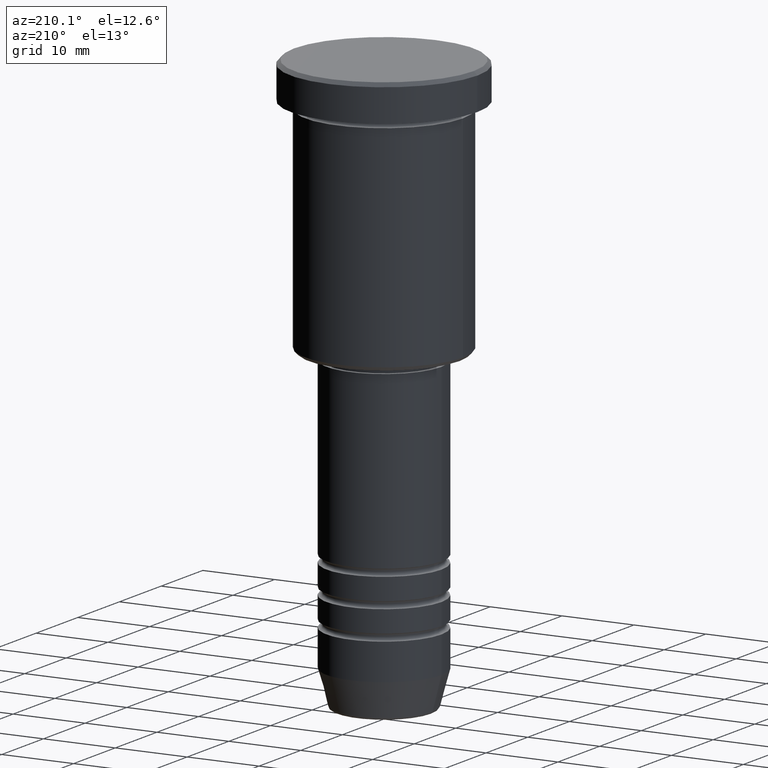
[diagram: clean part render]
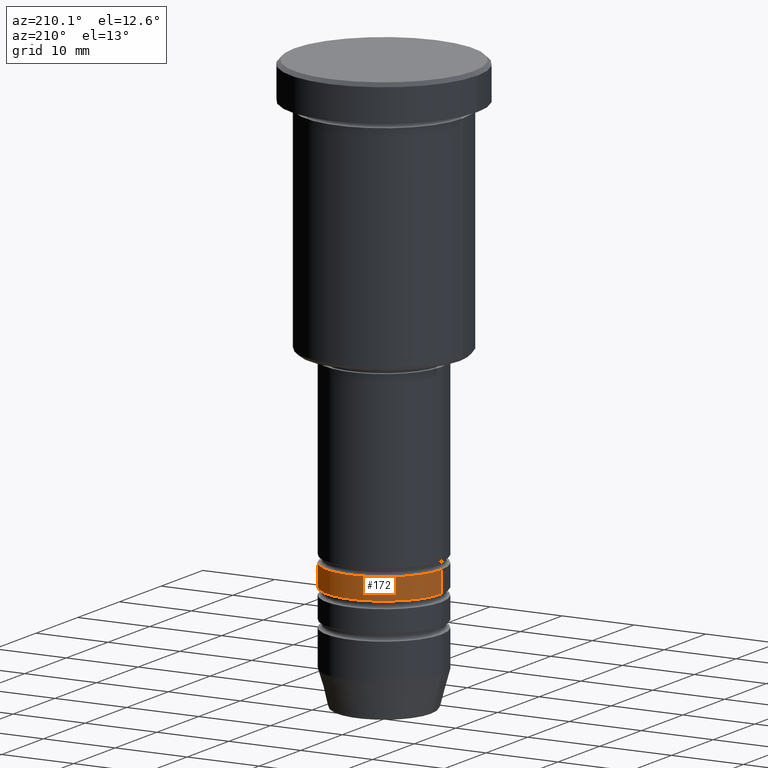
[diagram: same view with one face highlighted and labeled with its STEP entity id]
A machine part, auxiliary view. The second image highlights one B-rep face of the part: STEP entity #172.
In plain terms, the highlighted cylindrical surface (partial cylindrical patch) has radius 8 mm, axis along (-0, -0, 1).
Its self-contained STEP definition (entity closure, byte-faithful):
#57 = AXIS2_PLACEMENT_3D ( 'NONE', #1094, #931, #913 ) ;
#78 = CARTESIAN_POINT ( 'NONE',  ( -8.000000000000001776, 9.797174393178827630E-16, 0.000000000000000000 ) ) ;
#99 = EDGE_CURVE ( 'NONE', #212, #798, #878, .T. ) ;
#121 = EDGE_CURVE ( 'NONE', #212, #629, #502, .T. ) ;
#151 = VECTOR ( 'NONE', #436, 1000.000000000000000 ) ;
#153 = CARTESIAN_POINT ( 'NONE',  ( 0.000000000000000000, 0.000000000000000000, -65.00000000000000000 ) ) ;
#172 = ADVANCED_FACE ( 'NONE', ( #254 ), #1003, .T. ) ;
#191 = DIRECTION ( 'NONE',  ( 1.000000000000000000, 0.000000000000000000, 0.000000000000000000 ) ) ;
#197 = VECTOR ( 'NONE', #1059, 1000.000000000000000 ) ;
#212 = VERTEX_POINT ( 'NONE', #728 ) ;
#233 = CARTESIAN_POINT ( 'NONE',  ( 8.000000000000001776, 0.000000000000000000, 0.000000000000000000 ) ) ;
#254 = FACE_OUTER_BOUND ( 'NONE', #712, .T. ) ;
#436 = DIRECTION ( 'NONE',  ( -0.000000000000000000, -0.000000000000000000, 1.000000000000000000 ) ) ;
#456 = VERTEX_POINT ( 'NONE', #974 ) ;
#464 = CARTESIAN_POINT ( 'NONE',  ( 8.000000000000000000, 0.000000000000000000, -62.00000000000000711 ) ) ;
#502 = CIRCLE ( 'NONE', #1019, 8.000000000000003553 ) ;
#511 = DIRECTION ( 'NONE',  ( -0.000000000000000000, -0.000000000000000000, 1.000000000000000000 ) ) ;
#620 = CARTESIAN_POINT ( 'NONE',  ( -8.000000000000003553, 9.797174393178829602E-16, -65.00000000000000000 ) ) ;
#629 = VERTEX_POINT ( 'NONE', #620 ) ;
#635 = CARTESIAN_POINT ( 'NONE',  ( 0.000000000000000000, 0.000000000000000000, 0.000000000000000000 ) ) ;
#685 = LINE ( 'NONE', #78, #151 ) ;
#712 = EDGE_LOOP ( 'NONE', ( #1024, #1005, #860, #1069 ) ) ;
#728 = CARTESIAN_POINT ( 'NONE',  ( 8.000000000000003553, 0.000000000000000000, -65.00000000000000000 ) ) ;
#798 = VERTEX_POINT ( 'NONE', #464 ) ;
#800 = DIRECTION ( 'NONE',  ( -0.000000000000000000, -0.000000000000000000, 1.000000000000000000 ) ) ;
#860 = ORIENTED_EDGE ( 'NONE', *, *, #1121, .F. ) ;
#870 = AXIS2_PLACEMENT_3D ( 'NONE', #635, #800, #191 ) ;
#878 = LINE ( 'NONE', #233, #197 ) ;
#913 = DIRECTION ( 'NONE',  ( 1.000000000000000000, 0.000000000000000000, 0.000000000000000000 ) ) ;
#931 = DIRECTION ( 'NONE',  ( -0.000000000000000000, -0.000000000000000000, 1.000000000000000000 ) ) ;
#958 = EDGE_CURVE ( 'NONE', #629, #456, #685, .T. ) ;
#974 = CARTESIAN_POINT ( 'NONE',  ( -8.000000000000000000, 9.797174393178827630E-16, -62.00000000000000711 ) ) ;
#1003 = CYLINDRICAL_SURFACE ( 'NONE', #870, 8.000000000000001776 ) ;
#1005 = ORIENTED_EDGE ( 'NONE', *, *, #958, .T. ) ;
#1019 = AXIS2_PLACEMENT_3D ( 'NONE', #153, #511, #1150 ) ;
#1024 = ORIENTED_EDGE ( 'NONE', *, *, #121, .T. ) ;
#1028 = CIRCLE ( 'NONE', #57, 8.000000000000000000 ) ;
#1059 = DIRECTION ( 'NONE',  ( -0.000000000000000000, -0.000000000000000000, 1.000000000000000000 ) ) ;
#1069 = ORIENTED_EDGE ( 'NONE', *, *, #99, .F. ) ;
#1094 = CARTESIAN_POINT ( 'NONE',  ( 0.000000000000000000, 0.000000000000000000, -62.00000000000000711 ) ) ;
#1121 = EDGE_CURVE ( 'NONE', #798, #456, #1028, .T. ) ;
#1150 = DIRECTION ( 'NONE',  ( 1.000000000000000000, 0.000000000000000000, 0.000000000000000000 ) ) ;